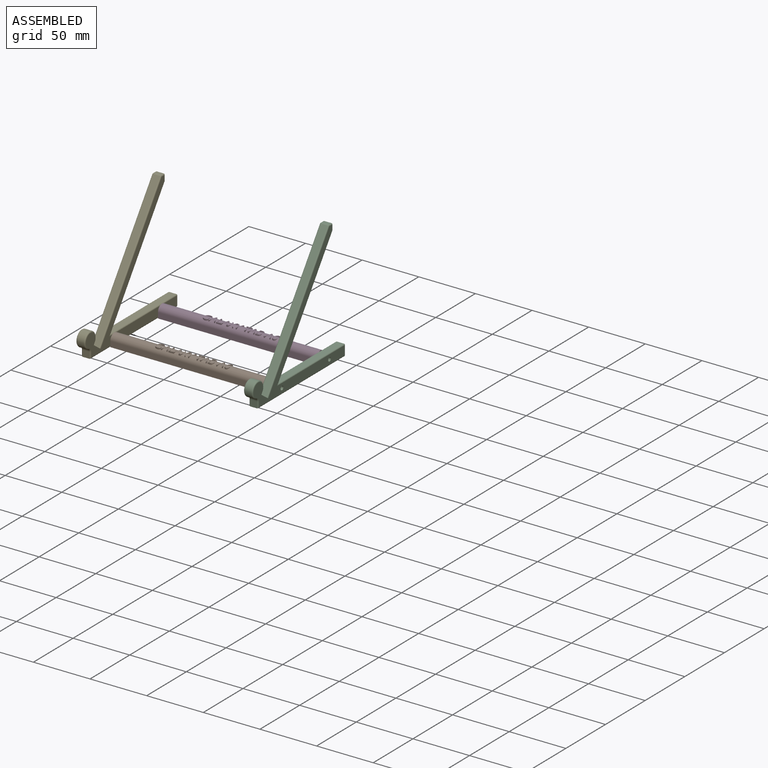
[diagram: assembled view]
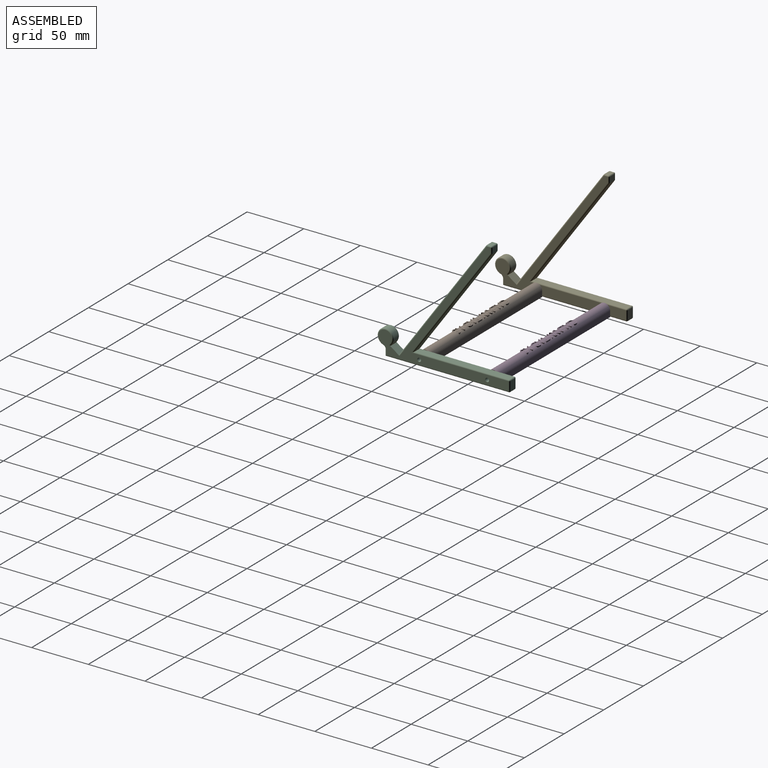
[diagram: assembled view, second angle]
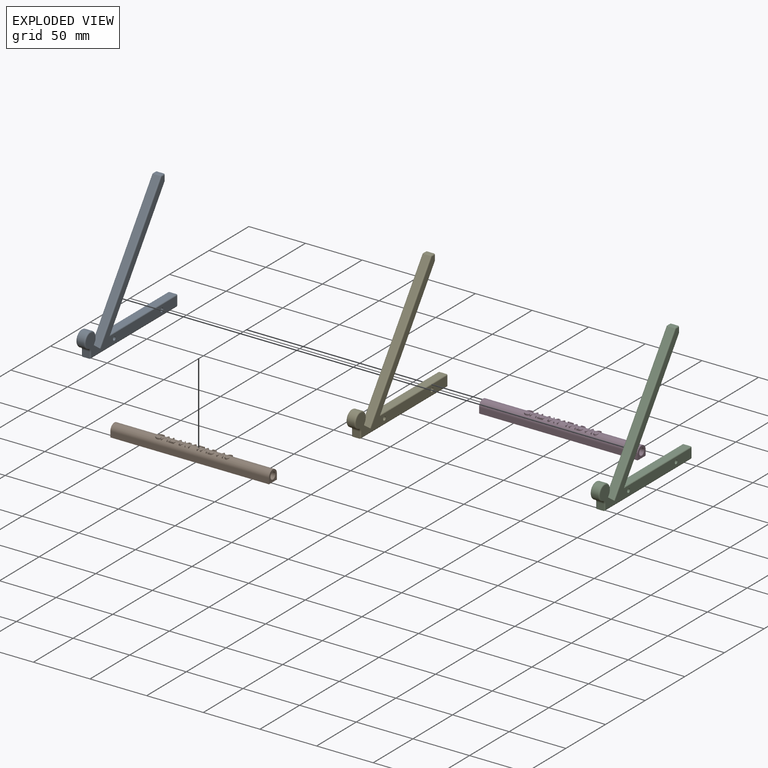
[diagram: exploded view]
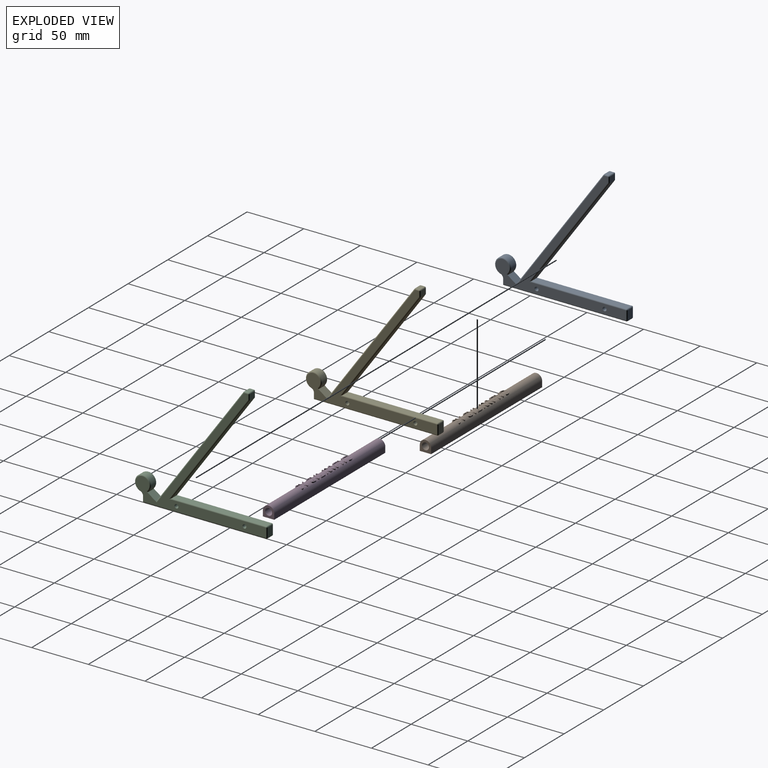
[diagram: exploded view, second angle]
ASSEMBLY  parts=5 mates=3
PART A: 53 faces, bbox 8x117.6x112.3 mm
  f0: plane 96x68.55mm, normal (0,0.81,-0.58), area 707.7mm2, adj f11,f30,f31,f38
  f1: plane 6x4.68mm, normal (0,1,0), area 28.1mm2, adj f23,f24,f31,f32
  f2: plane 6x3.49mm, normal (0,0,1), area 20.9mm2, adj f18,f19,f24,f25
  f3: plane 107.84x77mm, normal (0,-0.81,0.58), area 795.1mm2, adj f4,f16,f19,f20
  f4: plane 8.95x8mm, normal (0,0.58,0.81), area 72.9mm2, adj f3,f5,f12,f13,f16,f20,f26,f47
  f5: plane 6x1.63mm, normal (0,0.81,-0.58), area 12mm2, adj f4,f6,f26,f47
  f6: cylinder r=7mm len=14mm, axis (-1,0,0), area 211.2mm2, adj f5,f7,f29,f49
  f7: cylinder r=3mm len=6mm, axis (-1,0,0), area 22.8mm2, adj f6,f8,f33,f51
  f8: plane 6x5.39mm, normal (0,-1,0), area 32.3mm2, adj f7,f9,f36,f52
  f9: plane 109x6mm, normal (0,0,-1), area 654mm2, adj f8,f39,f45,f50
  f10: plane 8x6mm, normal (0,1,0), area 48mm2, adj f40,f41,f45,f46
  f11: plane 83.57x6mm, normal (0,0,1), area 501.4mm2, adj f0,f34,f41,f42
  f12: plane 115x110.26mm, normal (1,0,0), area 1620.5mm2, adj f4,f14,f15,f16,f18,f23,f26,f29
  f13: plane 115x110.26mm, normal (-1,0,0), area 1620.5mm2, adj f4,f14,f15,f20,f25,f32,f38,f42
  f14: cylinder r=1.7mm len=8mm, axis (-1,0,0), area 85.5mm2, adj f12,f13
  f15: cylinder r=1.7mm len=8mm, axis (-1,0,0), area 85.5mm2, adj f12,f13
  f16: cylinder r=1mm len=108.42mm, axis (0,0.58,0.81), area 208.1mm2, adj f3,f4,f12,f17
  f17: sphere r=1mm, area 1mm2, adj f16,f18,f19
  f18: cylinder r=1mm len=3.49mm, axis (0,1,0), area 5.5mm2, adj f2,f12,f17,f21
  f19: cylinder r=1mm len=6mm, axis (-1,0,0), area 5.7mm2, adj f2,f3,f17,f22
  f20: cylinder r=1mm len=108.42mm, axis (0,-0.58,-0.81), area 208.1mm2, adj f3,f4,f13,f22
  f21: sphere r=1mm, area 1.6mm2, adj f18,f23,f24
  f22: sphere r=1mm, area 1mm2, adj f19,f20,f25
  f23: cylinder r=1mm len=4.68mm, axis (0,0,-1), area 7.4mm2, adj f1,f12,f21,f27
  f24: cylinder r=1mm len=6mm, axis (-1,0,0), area 9.4mm2, adj f1,f2,f21,f28
  f25: cylinder r=1mm len=3.49mm, axis (0,-1,0), area 5.5mm2, adj f2,f13,f22,f28
  f26: cylinder r=1mm len=2.21mm, axis (0,-0.58,-0.81), area 3.1mm2, adj f4,f5,f12,f29
  f27: sphere r=1mm, area 0.6mm2, adj f23,f30,f31
  f28: sphere r=1mm, area 1.6mm2, adj f24,f25,f32
  f29: torus R=6mm, axis (1,0,0), area 52.4mm2, adj f6,f12,f26,f33
  f30: cylinder r=1mm len=98.16mm, axis (0,-0.58,-0.81), area 186.4mm2, adj f0,f12,f27,f34
  f31: cylinder r=1mm len=6mm, axis (-1,0,0), area 3.7mm2, adj f0,f1,f27,f35
  f32: cylinder r=1mm len=4.68mm, axis (0,0,1), area 7.4mm2, adj f1,f13,f28,f35
  f33: torus R=4mm, axis (1,0,0), area 6.7mm2, adj f7,f12,f29,f36
  f34: cylinder r=1mm len=85.52mm, axis (0,1,0), area 132.4mm2, adj f11,f12,f30,f37
  f35: sphere r=1mm, area 0.6mm2, adj f31,f32,f38
  f36: cylinder r=1mm len=5.39mm, axis (0,0,1), area 7.9mm2, adj f8,f12,f33,f39
  f37: sphere r=1mm, area 1.6mm2, adj f34,f40,f41
  f38: cylinder r=1mm len=98.16mm, axis (0,0.58,0.81), area 186.4mm2, adj f0,f13,f35,f42
  f39: cylinder r=1mm len=109mm, axis (0,-1,0), area 170.6mm2, adj f9,f12,f36,f43
  f40: cylinder r=1mm len=8mm, axis (0,0,-1), area 12.6mm2, adj f10,f12,f37,f43
  f41: cylinder r=1mm len=6mm, axis (-1,0,0), area 9.4mm2, adj f10,f11,f37,f44
  f42: cylinder r=1mm len=85.52mm, axis (0,-1,0), area 132.4mm2, adj f11,f13,f38,f44
  f43: sphere r=1mm, area 1.6mm2, adj f39,f40,f45
  f44: sphere r=1mm, area 1.6mm2, adj f41,f42,f46
  f45: cylinder r=1mm len=6mm, axis (1,0,0), area 9.4mm2, adj f9,f10,f43,f48
  f46: cylinder r=1mm len=8mm, axis (0,0,1), area 12.6mm2, adj f10,f13,f44,f48
  f47: cylinder r=1mm len=2.21mm, axis (0,0.58,0.81), area 3.1mm2, adj f4,f5,f13,f49
  f48: sphere r=1mm, area 1.6mm2, adj f45,f46,f50
  f49: torus R=6mm, axis (1,0,0), area 52.4mm2, adj f6,f13,f47,f51
  f50: cylinder r=1mm len=109mm, axis (0,1,0), area 170.6mm2, adj f9,f13,f48,f52
  f51: torus R=4mm, axis (1,0,0), area 6.7mm2, adj f7,f13,f49,f52
  f52: cylinder r=1mm len=5.39mm, axis (0,0,-1), area 7.9mm2, adj f8,f13,f50,f51
PART B: 219 faces, bbox 140x10x10 mm
  f0: cylinder r=5mm len=140mm, axis (1,0,0), area 2036.5mm2, adj f1,f2,f3,f4,f10,f11,f12,f13
  f1: plane 10x10mm, normal (-1,0,0), area 59.1mm2, adj f0,f2,f4,f5,f8
  f2: plane 140x5mm, normal (0,-1,0), area 700mm2, adj f0,f1,f3,f5
  f3: plane 10x10mm, normal (1,0,0), area 59.1mm2, adj f0,f2,f4,f5,f6
  f4: plane 140x5mm, normal (0,1,0), area 700mm2, adj f0,f1,f3,f5
  f5: plane 140x10mm, normal (0,0,-1), area 1400mm2, adj f1,f2,f3,f4
  f6: cylinder r=3.1mm len=12mm, axis (1,0,0), area 233.7mm2, adj f3,f7
  f7: plane 6.2x6.2mm, normal (1,0,0), area 30.2mm2, adj f6
  f8: cylinder r=3.1mm len=12mm, axis (-1,0,0), area 233.7mm2, adj f1,f9
  f9: plane 6.2x6.2mm, normal (-1,0,0), area 30.2mm2, adj f8
  f10: plane 0.57x0.03mm, normal (-1,0,0), area 0mm2, adj f0,f14,f16
  f11: extruded ~0.05x0mm, area 0mm2, adj f0,f14,f20
  f12: extruded ~1.76x0.41mm, area 0.3mm2, adj f0,f14,f27
  f13: plane 3.1x1.08mm, normal (1,0,0), area 1.1mm2, adj f0,f14,f32
  f14: plane 6.8x5.5mm, normal (0,0,1), area 13.2mm2, adj f10,f11,f12,f13,f15,f16,f17,f18
  f15: plane 0.11x0mm, normal (-1,0,0), area 0mm2, adj f0,f14,f34
  f16: plane 1.48x0.03mm, normal (0,-1,0), area 0mm2, adj f0,f10,f14,f17
  f17: plane 2.04x0.74mm, normal (-1,0,0), area 0.6mm2, adj f0,f14,f16,f18
  f18: extruded ~1.34x0.84mm, area 1.1mm2, adj f0,f14,f17,f19
  f19: extruded ~1.92x0.84mm, area 1.5mm2, adj f0,f14,f18,f20
  f20: extruded ~2.03x0.65mm, area 0.4mm2, adj f0,f11,f14,f19
  f21: extruded ~1.95x0.68mm, area 0.3mm2, adj f0,f14,f22
  f22: extruded ~1.89x0.77mm, area 1.3mm2, adj f0,f14,f21,f23
  f23: extruded ~1.72x0.77mm, area 1.2mm2, adj f0,f14,f22,f24
  f24: plane 0.98x0.69mm, normal (0.92,-0.4,0), area 0.6mm2, adj f0,f14,f23,f25
  f25: extruded ~1.97x1.29mm, area 2.3mm2, adj f0,f14,f24,f26
  f26: extruded ~1.82x1.29mm, area 2.1mm2, adj f0,f14,f25,f27
  f27: extruded ~1.19x1.19mm, area 1.1mm2, adj f0,f12,f14,f26
  f28: extruded ~0.05x0mm, area 0mm2, adj f0,f14,f29
  f29: extruded ~2.5x0.84mm, area 0.7mm2, adj f0,f14,f28,f30
  f30: extruded ~2.34x1.37mm, area 2.9mm2, adj f0,f14,f29,f31
  f31: extruded ~1.37x1.26mm, area 1.7mm2, adj f0,f14,f30,f32
  f32: extruded ~1.29x1.07mm, area 1.3mm2, adj f0,f13,f14,f31
  f33: plane 0.11x0mm, normal (1,0,0), area 0mm2, adj f0,f14,f34
  f34: plane 2.25x0mm, normal (0,1,0), area 0mm2, adj f0,f14,f15,f33
  f35: plane 3.35x1.31mm, normal (0.93,0.36,0), area 1.5mm2, adj f0,f39,f40
  f36: plane 3.29x1.3mm, normal (-0.93,0.37,0), area 1.4mm2, adj f0,f39,f42
  f37: plane 0.56x0.21mm, normal (0.94,-0.35,0), area 0mm2, adj f39,f47,f53
  f38: plane 1.5x0.57mm, normal (-0.94,-0.35,0), area 0.1mm2, adj f39,f50,f53
  f39: plane 6.64x5.86mm, normal (0,0,1), area 11.3mm2, adj f35,f36,f37,f38,f40,f41,f42,f43
  f40: plane 1.29x0.8mm, normal (0,-1,0), area 1mm2, adj f0,f35,f39,f52
  f41: plane 3.29x1.29mm, normal (0.93,0.36,0), area 1.4mm2, adj f0,f39,f42
  f42: plane 1.23x0.65mm, normal (0,1,0), area 0.8mm2, adj f0,f36,f39,f41
  f43: plane 3.35x1.32mm, normal (-0.93,0.37,0), area 1.5mm2, adj f0,f39,f44
  f44: plane 1.29x0.78mm, normal (0,-1,0), area 1mm2, adj f0,f39,f43,f45
  f45: plane 2.1x1.29mm, normal (0.93,-0.36,0), area 1.4mm2, adj f0,f39,f44,f46
  f46: plane 2.65x0.16mm, normal (0,-1,0), area 0.4mm2, adj f0,f39,f45,f52
  f47: plane 2.14x0.03mm, normal (0,1,0), area 0.1mm2, adj f37,f39,f51,f53
  f48: plane 1.5x0.57mm, normal (0.94,-0.35,0), area 0.1mm2, adj f39,f49,f53
  f49: extruded ~0.95x0.64mm, area 0.4mm2, adj f39,f48,f50,f53
  f50: extruded ~0.95x0.64mm, area 0.4mm2, adj f38,f39,f49,f53
  f51: plane 0.56x0.21mm, normal (-0.94,-0.35,0), area 0mm2, adj f39,f47,f53
  f52: plane 2.1x1.29mm, normal (-0.93,-0.36,0), area 1.4mm2, adj f0,f39,f40,f46
  f53: cylinder r=5mm len=3mm, axis (1,0,0), area 3.1mm2, adj f37,f38,f47,f48,f49,f50,f51
  f54: plane 2.66x0.76mm, normal (1,0,0), area 0.7mm2, adj f0,f56,f59
  f55: plane 3.35x1.29mm, normal (-1,0,0), area 1.4mm2, adj f0,f56,f57
  f56: plane 6.61x3.69mm, normal (0,0,1), area 7.1mm2, adj f54,f55,f57,f58,f59,f60,f61,f62
  f57: plane 3.69x1.29mm, normal (0,-1,0), area 4.8mm2, adj f0,f55,f56,f58
  f58: plane 1.29x0.7mm, normal (1,0,0), area 0.7mm2, adj f0,f56,f57,f59
  f59: plane 2.92x0.76mm, normal (0,1,0), area 2.2mm2, adj f0,f54,f56,f58
  f60: plane 3.26x1.21mm, normal (1,0,0), area 1.2mm2, adj f0,f56,f61
  f61: plane 1.21x0.77mm, normal (0,1,0), area 0.9mm2, adj f0,f56,f60,f62
  f62: plane 3.26x1.21mm, normal (-1,0,0), area 1.2mm2, adj f0,f56,f61
  f63: plane 3.35x1.31mm, normal (0.93,0.36,0), area 1.5mm2, adj f0,f67,f68
  f64: plane 3.29x1.3mm, normal (-0.93,0.37,0), area 1.4mm2, adj f0,f67,f70
  f65: plane 0.56x0.21mm, normal (0.94,-0.35,0), area 0mm2, adj f67,f75,f81
  f66: plane 1.5x0.57mm, normal (-0.94,-0.35,0), area 0.1mm2, adj f67,f78,f81
  f67: plane 6.64x5.86mm, normal (0,0,1), area 11.3mm2, adj f63,f64,f65,f66,f68,f69,f70,f71
  f68: plane 1.29x0.8mm, normal (0,-1,0), area 1mm2, adj f0,f63,f67,f80
  f69: plane 3.29x1.29mm, normal (0.93,0.36,0), area 1.4mm2, adj f0,f67,f70
  f70: plane 1.23x0.65mm, normal (0,1,0), area 0.8mm2, adj f0,f64,f67,f69
  f71: plane 3.35x1.32mm, normal (-0.93,0.37,0), area 1.5mm2, adj f0,f67,f72
  f72: plane 1.29x0.78mm, normal (0,-1,0), area 1mm2, adj f0,f67,f71,f73
  f73: plane 2.1x1.29mm, normal (0.93,-0.36,0), area 1.4mm2, adj f0,f67,f72,f74
  f74: plane 2.65x0.16mm, normal (0,-1,0), area 0.4mm2, adj f0,f67,f73,f80
  f75: plane 2.14x0.03mm, normal (0,1,0), area 0.1mm2, adj f65,f67,f79,f81
  f76: plane 1.5x0.57mm, normal (0.94,-0.35,0), area 0.1mm2, adj f67,f77,f81
  f77: extruded ~0.95x0.64mm, area 0.4mm2, adj f67,f76,f78,f81
  f78: extruded ~0.95x0.64mm, area 0.4mm2, adj f66,f67,f77,f81
  f79: plane 0.56x0.21mm, normal (-0.94,-0.35,0), area 0mm2, adj f67,f75,f81
  f80: plane 2.1x1.29mm, normal (-0.93,-0.36,0), area 1.4mm2, adj f0,f67,f68,f74
  f81: cylinder r=5mm len=3mm, axis (1,0,0), area 3.1mm2, adj f65,f66,f75,f76,f77,f78,f79
  f82: plane 3.35x2.12mm, normal (0.84,0.54,0), area 1.6mm2, adj f0,f84,f96
  f83: plane 0.11x0.07mm, normal (-0.84,0.54,0), area 0mm2, adj f0,f84,f91
  f84: plane 6.61x5.28mm, normal (0,0,1), area 10.3mm2, adj f82,f83,f85,f86,f87,f88,f89,f90
  f85: plane 0.13x0.08mm, normal (0.84,0.54,0), area 0mm2, adj f0,f84,f86
  f86: plane 3.13x2.05mm, normal (0.84,-0.55,0), area 1.5mm2, adj f0,f84,f85,f87
  f87: plane 1.21x0.82mm, normal (0,1,0), area 1mm2, adj f0,f84,f86,f88
  f88: plane 2.62x1.66mm, normal (-0.85,0.53,0), area 1.5mm2, adj f0,f84,f87,f89
  f89: plane 2.62x1.64mm, normal (0.85,0.53,0), area 1.5mm2, adj f0,f84,f88,f90
  f90: plane 1.21x0.85mm, normal (0,1,0), area 1mm2, adj f0,f84,f89,f91
  f91: plane 3.16x2.05mm, normal (-0.84,-0.54,0), area 1.5mm2, adj f0,f83,f84,f90
  f92: plane 3.35x2.13mm, normal (-0.84,0.54,0), area 1.6mm2, adj f0,f84,f93
  f93: plane 1.29x0.82mm, normal (0,-1,0), area 1.1mm2, adj f0,f84,f92,f94
  f94: plane 2.91x1.81mm, normal (0.85,-0.53,0), area 1.6mm2, adj f0,f84,f93,f95
  f95: plane 2.91x1.78mm, normal (-0.85,-0.52,0), area 1.6mm2, adj f0,f84,f94,f96
  f96: plane 1.29x0.87mm, normal (0,-1,0), area 1.1mm2, adj f0,f82,f84,f95
  f97: plane 0.05x0.02mm, normal (0.88,0.47,0), area 0mm2, adj f0,f101,f110
  f98: plane 3.26x1.76mm, normal (-0.88,-0.47,0), area 1.4mm2, adj f0,f101,f103
  f99: plane 0.79x0.43mm, normal (0.88,-0.48,0), area 0mm2, adj f0,f101,f107
  f100: plane 3.26x1.74mm, normal (-0.88,0.47,0), area 1.4mm2, adj f0,f101,f109
  f101: plane 6.61x5.19mm, normal (0,0,1), area 8.3mm2, adj f97,f98,f99,f100,f102,f103,f104,f105
  f102: plane 3.26x1.73mm, normal (0.88,0.47,0), area 1.4mm2, adj f0,f101,f103
  f103: plane 1.21x0.84mm, normal (0,1,0), area 1mm2, adj f0,f98,f101,f102
  f104: plane 0.82x0.45mm, normal (-0.88,-0.47,0), area 0mm2, adj f0,f101,f105
  f105: plane 2.53x1.29mm, normal (-1,0,0), area 1.3mm2, adj f0,f101,f104,f106
  f106: plane 1.29x0.78mm, normal (0,-1,0), area 1mm2, adj f0,f101,f105,f107
  f107: plane 2.57x1.29mm, normal (1,0,0), area 1.3mm2, adj f0,f99,f101,f106
  f108: plane 3.26x1.78mm, normal (0.88,-0.48,0), area 1.4mm2, adj f0,f101,f109
  f109: plane 1.21x0.83mm, normal (0,1,0), area 1mm2, adj f0,f100,f101,f108
  f110: plane 0.05x0.02mm, normal (-0.88,0.47,0), area 0mm2, adj f0,f97,f101
  f111: plane 3.35x1.29mm, normal (1,0,0), area 1.4mm2, adj f0,f113,f121
  f112: plane 3.35x1.29mm, normal (-1,0,0), area 1.4mm2, adj f0,f113,f121
  f113: plane 6.61x4.96mm, normal (0,0,1), area 7.9mm2, adj f111,f112,f114,f115,f116,f117,f118,f119
  f114: plane 2.58x0.72mm, normal (1,0,0), area 0.6mm2, adj f0,f113,f115
  f115: plane 2.09x0.72mm, normal (0,-1,0), area 1.5mm2, adj f0,f113,f114,f116
  f116: plane 1.21x0.68mm, normal (1,0,0), area 0.6mm2, adj f0,f113,f115,f117
  f117: plane 4.96x1.21mm, normal (0,1,0), area 6mm2, adj f0,f113,f116,f118
  f118: plane 1.21x0.68mm, normal (-1,0,0), area 0.6mm2, adj f0,f113,f117,f119
  f119: plane 2.09x0.72mm, normal (0,-1,0), area 1.5mm2, adj f0,f113,f118,f120
  f120: plane 2.58x0.72mm, normal (-1,0,0), area 0.6mm2, adj f0,f113,f119
  f121: plane 1.29x0.77mm, normal (0,-1,0), area 1mm2, adj f0,f111,f112,f113
  f122: plane 3.35x1.31mm, normal (0.93,0.36,0), area 1.5mm2, adj f0,f126,f127
  f123: plane 3.29x1.3mm, normal (-0.93,0.37,0), area 1.4mm2, adj f0,f126,f129
  f124: plane 0.56x0.21mm, normal (0.94,-0.35,0), area 0mm2, adj f126,f134,f140
  f125: plane 1.5x0.57mm, normal (-0.94,-0.35,0), area 0.1mm2, adj f126,f137,f140
  f126: plane 6.64x5.86mm, normal (0,0,1), area 11.3mm2, adj f122,f123,f124,f125,f127,f128,f129,f130
  f127: plane 1.29x0.8mm, normal (0,-1,0), area 1mm2, adj f0,f122,f126,f139
  f128: plane 3.29x1.29mm, normal (0.93,0.36,0), area 1.4mm2, adj f0,f126,f129
  f129: plane 1.23x0.65mm, normal (0,1,0), area 0.8mm2, adj f0,f123,f126,f128
  f130: plane 3.35x1.32mm, normal (-0.93,0.37,0), area 1.5mm2, adj f0,f126,f131
  f131: plane 1.29x0.78mm, normal (0,-1,0), area 1mm2, adj f0,f126,f130,f132
  f132: plane 2.1x1.29mm, normal (0.93,-0.36,0), area 1.4mm2, adj f0,f126,f131,f133
  f133: plane 2.65x0.16mm, normal (0,-1,0), area 0.4mm2, adj f0,f126,f132,f139
  f134: plane 2.14x0.03mm, normal (0,1,0), area 0.1mm2, adj f124,f126,f138,f140
  f135: plane 1.5x0.57mm, normal (0.94,-0.35,0), area 0.1mm2, adj f126,f136,f140
  f136: extruded ~0.95x0.64mm, area 0.4mm2, adj f126,f135,f137,f140
  f137: extruded ~0.95x0.64mm, area 0.4mm2, adj f125,f126,f136,f140
  f138: plane 0.56x0.21mm, normal (-0.94,-0.35,0), area 0mm2, adj f126,f134,f140
  f139: plane 2.1x1.29mm, normal (-0.93,-0.36,0), area 1.4mm2, adj f0,f126,f127,f133
  f140: cylinder r=5mm len=3mm, axis (1,0,0), area 3.1mm2, adj f124,f125,f134,f135,f136,f137,f138
  f141: plane 3.35x1.29mm, normal (-1,0,0), area 1.4mm2, adj f0,f143,f145
  f142: extruded ~1.47x1.05mm, area 0.2mm2, adj f0,f143,f147
  f143: plane 6.61x4.58mm, normal (0,0,1), area 14.9mm2, adj f141,f142,f144,f145,f146,f147,f148,f149
  f144: plane 3.26x1.21mm, normal (-1,0,0), area 1.2mm2, adj f0,f143,f168
  f145: plane 2.31x1.29mm, normal (0,-1,0), area 3mm2, adj f0,f141,f143,f146
  f146: extruded ~1.68x1.29mm, area 2.1mm2, adj f0,f143,f145,f147
  f147: extruded ~1.38x0.89mm, area 0.9mm2, adj f0,f142,f143,f146
  f148: extruded ~0.46x0.11mm, area 0mm2, adj f0,f143,f149
  f149: plane 0.05x0mm, normal (1,0,0), area 0mm2, adj f0,f143,f148,f150
  f150: extruded ~0.96x0.5mm, area 0mm2, adj f0,f143,f149,f151
  f151: extruded ~0.97x0.33mm, area 0.1mm2, adj f0,f143,f150,f152
  f152: extruded ~1.24x0.9mm, area 0.8mm2, adj f0,f143,f151,f153
  f153: extruded ~1.9x1.21mm, area 2.2mm2, adj f0,f143,f152,f168
  f154: plane 2.17x0.73mm, normal (1,0,0), area 0.6mm2, adj f143,f155,f166,f170
  f155: plane 1.13x0.73mm, normal (0,-1,0), area 0.8mm2, adj f143,f154,f156,f170
  f156: extruded ~1.27x0.73mm, area 0.9mm2, adj f143,f155,f157,f170
  f157: extruded ~0.8x0.59mm, area 0.4mm2, adj f143,f156,f158,f170
  f158: extruded ~0.86x0.36mm, area 0.1mm2, adj f143,f157,f159,f170
  f159: extruded ~1.17x0.26mm, area 0mm2, adj f143,f158,f166,f170
  f160: plane 1.32x0.01mm, normal (0,-1,0), area 0mm2, adj f143,f161,f167,f169
  f161: extruded ~1.26x0.29mm, area 0mm2, adj f143,f160,f162,f169
  f162: extruded ~0.9x0.41mm, area 0.1mm2, adj f143,f161,f163,f169
  f163: extruded ~0.97x0.61mm, area 0.4mm2, adj f143,f162,f164,f169
  f164: extruded ~1.21x0.79mm, area 0.9mm2, adj f143,f163,f165,f169
  f165: plane 1.38x0.79mm, normal (0,1,0), area 1.1mm2, adj f143,f164,f167,f169
  f166: plane 1.27x0.02mm, normal (0,1,0), area 0mm2, adj f143,f154,f159,f170
  f167: plane 2.48x0.79mm, normal (1,0,0), area 0.7mm2, adj f143,f160,f165,f169
  f168: plane 1.87x1.21mm, normal (0,1,0), area 2.3mm2, adj f0,f143,f144,f153
  f169: cylinder r=5mm len=2.99mm, axis (1,0,0), area 7.1mm2, adj f160,f161,f162,f163,f164,f165,f167
  f170: cylinder r=5mm len=2.8mm, axis (1,0,0), area 5.7mm2, adj f154,f155,f156,f157,f158,f159,f166
  f171: plane 3.35x1.31mm, normal (0.93,0.36,0), area 1.5mm2, adj f0,f175,f176
  f172: plane 3.29x1.3mm, normal (-0.93,0.37,0), area 1.4mm2, adj f0,f175,f178
  f173: plane 0.56x0.21mm, normal (0.94,-0.35,0), area 0mm2, adj f175,f183,f189
  f174: plane 1.5x0.57mm, normal (-0.94,-0.35,0), area 0.1mm2, adj f175,f186,f189
  f175: plane 6.64x5.86mm, normal (0,0,1), area 11.3mm2, adj f171,f172,f173,f174,f176,f177,f178,f179
  f176: plane 1.29x0.8mm, normal (0,-1,0), area 1mm2, adj f0,f171,f175,f188
  f177: plane 3.29x1.29mm, normal (0.93,0.36,0), area 1.4mm2, adj f0,f175,f178
  f178: plane 1.23x0.65mm, normal (0,1,0), area 0.8mm2, adj f0,f172,f175,f177
  f179: plane 3.35x1.32mm, normal (-0.93,0.37,0), area 1.5mm2, adj f0,f175,f180
  f180: plane 1.29x0.78mm, normal (0,-1,0), area 1mm2, adj f0,f175,f179,f181
  f181: plane 2.1x1.29mm, normal (0.93,-0.36,0), area 1.4mm2, adj f0,f175,f180,f182
  f182: plane 2.65x0.16mm, normal (0,-1,0), area 0.4mm2, adj f0,f175,f181,f188
  f183: plane 2.14x0.03mm, normal (0,1,0), area 0.1mm2, adj f173,f175,f187,f189
  f184: plane 1.5x0.57mm, normal (0.94,-0.35,0), area 0.1mm2, adj f175,f185,f189
  f185: extruded ~0.95x0.64mm, area 0.4mm2, adj f175,f184,f186,f189
  f186: extruded ~0.95x0.64mm, area 0.4mm2, adj f174,f175,f185,f189
  f187: plane 0.56x0.21mm, normal (-0.94,-0.35,0), area 0mm2, adj f175,f183,f189
  f188: plane 2.1x1.29mm, normal (-0.93,-0.36,0), area 1.4mm2, adj f0,f175,f176,f182
  f189: cylinder r=5mm len=3mm, axis (1,0,0), area 3.1mm2, adj f173,f174,f183,f184,f185,f186,f187
  f190: extruded ~1.23x0.33mm, area 0.1mm2, adj f0,f193,f197
  f191: extruded ~0.75x0.18mm, area 0mm2, adj f193,f212,f218
  f192: extruded ~2.39x0.74mm, area 0.5mm2, adj f0,f193,f206
  f193: plane 6.8x4.32mm, normal (0,0,1), area 11.3mm2, adj f0,f190,f191,f192,f194,f195,f196,f197
  f194: extruded ~2.15x0.77mm, area 0.7mm2, adj f0,f193,f195,f217
  f195: extruded ~1.63x1.37mm, area 2.2mm2, adj f0,f193,f194,f196
  f196: extruded ~1.52x1.37mm, area 2mm2, adj f0,f193,f195,f197
  f197: extruded ~1.62x0.89mm, area 0.9mm2, adj f0,f190,f193,f196
  f198: extruded ~0.23x0.19mm, area 0mm2, adj f0,f193,f199
  f199: extruded ~1.41x0.54mm, area 0.1mm2, adj f0,f193,f198,f200
  f200: extruded ~1.57x0.77mm, area 0.1mm2, adj f0,f193,f199
  f201: extruded ~2.07x0.61mm, area 0.3mm2, adj f0,f193,f202
  f202: extruded ~1.63x0.82mm, area 1.2mm2, adj f0,f193,f201,f203
  f203: extruded ~0.82x0.8mm, area 0.6mm2, adj f0,f193,f202,f204
  f204: plane 1.22x0.65mm, normal (1,0,0), area 0.6mm2, adj f0,f193,f203,f205
  f205: extruded ~1.29x0.81mm, area 1mm2, adj f0,f193,f204,f206
  f206: extruded ~2.24x1.29mm, area 2.7mm2, adj f0,f192,f193,f205
  f207: extruded ~0.86x0.76mm, area 0.6mm2, adj f193,f208,f216,f218
  f208: extruded ~0.71x0.64mm, area 0.5mm2, adj f193,f207,f209,f218
  f209: extruded ~0.87x0.39mm, area 0.2mm2, adj f193,f208,f210,f218
  f210: extruded ~0.61x0.2mm, area 0mm2, adj f193,f209,f211,f218
  f211: extruded ~0.52x0.45mm, area 0mm2, adj f193,f210,f218
  f212: extruded ~0.75x0.17mm, area 0mm2, adj f191,f193,f218
  f213: extruded ~0.24x0.2mm, area 0mm2, adj f193,f214,f218
  f214: extruded ~1.03x0.33mm, area 0.1mm2, adj f193,f213,f215,f218
  f215: extruded ~1.17x0.61mm, area 0.5mm2, adj f193,f214,f216,f218
  f216: extruded ~1x0.86mm, area 0.8mm2, adj f193,f207,f215,f218
  f217: extruded ~0.52x0.03mm, area 0mm2, adj f0,f193,f194
  f218: cylinder r=5mm len=2.98mm, axis (1,0,0), area 7.1mm2, adj f191,f193,f207,f208,f209,f210,f211,f212
PART C: same geometry as A
PART D: same geometry as B
PART E: same geometry as A
PLACE A t=(-28.82,21.03,-8.34)mm fixed
PLACE B t=(-29.12,-29.7,-8.34)mm
PLACE C t=(119.18,21.03,-8.34)mm
PLACE D t=(-29.12,30.3,-8.34)mm
PLACE E t=(-28.82,21.03,-8.34)mm
MATE fastened C.f15 <-> D.f0  axis (-1,0,0) through (119.18,56.03,-3.34)mm
MATE fastened A.f14 <-> B.f6  axis (-1,0,0) through (-20.82,-3.97,-3.34)mm
MATE fastened D.f6 <-> A.f15  axis (-1,0,0) through (-20.82,56.03,-3.34)mm
